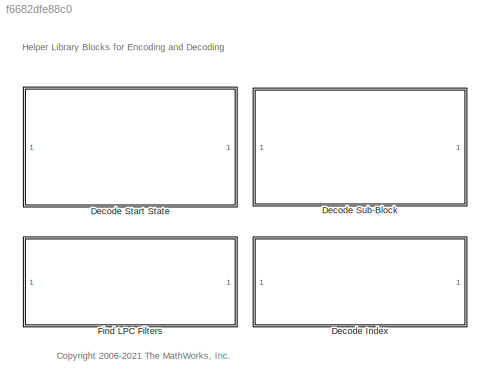
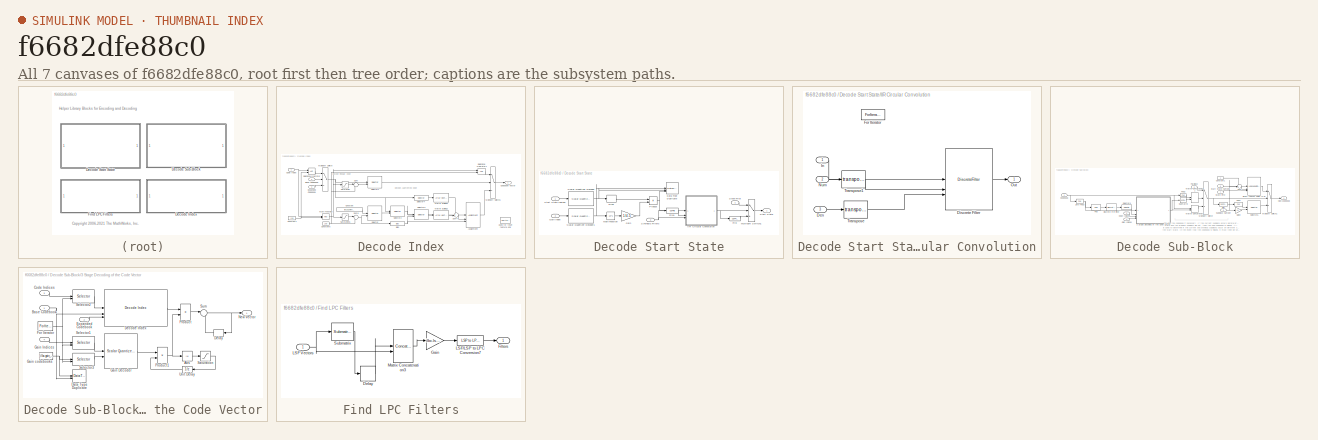
[diagram: thumbnail index - all 7 canvases of the model, root first then tree order]
MODEL slx_f6682dfe88c0
KIND library
CONFIG AbsTol = auto
CONFIG EnableMultiTasking = off
CONFIG FixedStep = auto
CONFIG MaxStep = auto
CONFIG MinStep = auto
CONFIG RelTol = 1e-3
CONFIG SampleTimeConstraint = Unconstrained
CONFIG SolverName = ode45
CONFIG StartTime = 0.0
CONFIG StopTime = 10.0
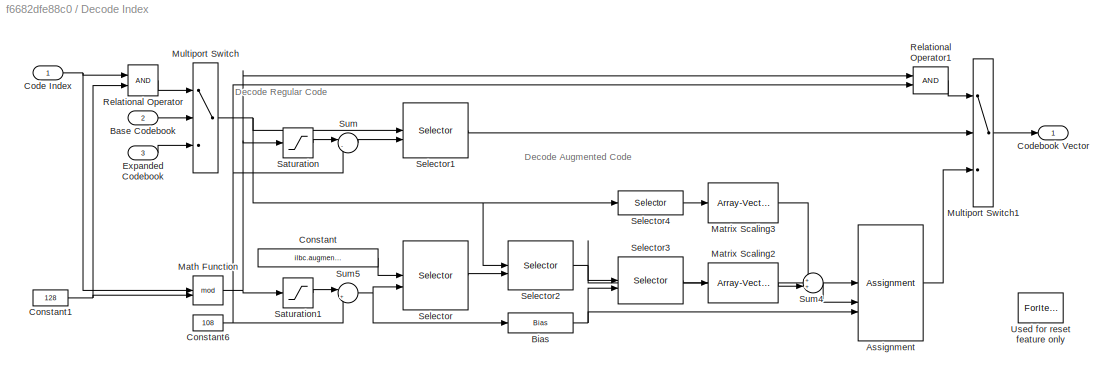
BLOCK [SubSystem] Decode Index
  RTWSystemCode = Reusable function
  TreatAsAtomicUnit = on
BLOCK [Assignment] Decode Index/Assignment
  IndexMode = Zero-based
  IndexOptions = Starting index (port),Assign all
  Indices = 1,1
  NumberOfDimensions = 2
  OutputSizes = 40,1
BLOCK [Inport] Decode Index/Base Codebook
  Port = 2
BLOCK [Bias] Decode Index/Bias
  Bias = 15
  SaturateOnIntegerOverflow = off
BLOCK [Inport] Decode Index/Code Index
BLOCK [Outport] Decode Index/Codebook Vector
BLOCK [Constant] Decode Index/Constant
  OutDataTypeStr = uint8
  Value = ilbc.augmented_idxTbl
  VectorParams1D = off
BLOCK [Constant] Decode Index/Constant1
  OutDataTypeStr = uint8
  Value = 128
BLOCK [Constant] Decode Index/Constant6
  OutDataTypeStr = uint8
  Value = 108
BLOCK [Inport] Decode Index/Expanded Codebook
  Port = 3
BLOCK [Math] Decode Index/Math Function
  Operator = mod
  SignedPower = on
BLOCK [Reference] Decode Index/Matrix Scaling2  REF=dspmtrx3/Array-Vector
Multiply
  SourceBlock = dspmtrx3/Array-Vector\nMultiply
  SourceType = Array-Vector Multiply
BLOCK [Reference] Decode Index/Matrix Scaling3  REF=dspmtrx3/Array-Vector
Multiply
  SourceBlock = dspmtrx3/Array-Vector\nMultiply
  SourceType = Array-Vector Multiply
BLOCK [MultiPortSwitch] Decode Index/Multiport Switch
  DataPortOrder = Zero-based contiguous
  InputSameDT = off
  Inputs = 2
  SaturateOnIntegerOverflow = off
  zeroidx = on
BLOCK [MultiPortSwitch] Decode Index/Multiport Switch1
  DataPortOrder = Zero-based contiguous
  InputSameDT = off
  Inputs = 2
  SaturateOnIntegerOverflow = off
  zeroidx = on
BLOCK [RelationalOperator] Decode Index/Relational Operator
  InputSameDT = off
  OutDataTypeStr = boolean
BLOCK [RelationalOperator] Decode Index/Relational Operator1
  InputSameDT = off
  OutDataTypeStr = boolean
BLOCK [Saturate] Decode Index/Saturation
  LowerLimit = 0
  UpperLimit = 107
BLOCK [Saturate] Decode Index/Saturation1
  LowerLimit = 108
  UpperLimit = 127
BLOCK [Selector] Decode Index/Selector
  IndexMode = Zero-based
  IndexOptions = Select all,Index vector (port)
  Indices = [1 3],1
  InputPortWidth = 3
  NumberOfDimensions = 2
  OutputSizes = 1,1
BLOCK [Selector] Decode Index/Selector1
  IndexOptions = Starting index (port),Select all
  Indices = 1,-1
  InputPortWidth = 3
  NumberOfDimensions = 2
  OutputSizes = 40,1
BLOCK [Selector] Decode Index/Selector2
  IndexOptions = Index vector (port),Select all
  Indices = [1 3],1
  InputPortWidth = 3
  NumberOfDimensions = 2
  OutputSizes = 1,1
BLOCK [Selector] Decode Index/Selector3
  IndexMode = Zero-based
  IndexOptions = Starting index (port),Select all
  Indices = [1 3],1
  InputPortWidth = 3
  NumberOfDimensions = 2
  OutputSizes = 5,5
BLOCK [Selector] Decode Index/Selector4
  IndexOptions = Index vector (dialog),Select all
  Indices = [143:147],1
  InputPortWidth = 3
  NumberOfDimensions = 2
  OutputSizes = 1,1
BLOCK [Sum] Decode Index/Sum
  Inputs = |-+
BLOCK [Sum] Decode Index/Sum4
  Inputs = ++|
BLOCK [Sum] Decode Index/Sum5
  Inputs = |+-
BLOCK [ForIterator] Decode Index/Used for reset feature only
  IterationLimit = 1
  IterationVariableDataType = int8
  ResetStates = reset
  ShowIterationPort = off
BLOCK [SubSystem] Decode Start State
  RTWSystemCode = Reusable function
  TreatAsAtomicUnit = on
BLOCK [DataTypeDuplicate] Decode Start State/Data Type Duplicate
  NumInputPorts = 3
BLOCK [DSPFlip] Decode Start State/Flip
BLOCK [DSPFlip] Decode Start State/Flip1
BLOCK [DSPFlip] Decode Start State/Flip3
BLOCK [Gain] Decode Start State/Gain
  Gain = 1/4.5
  OutDataTypeStr = Inherit: Inherit via back propagation
BLOCK [Inport] Decode Start State/Gain Index
  Port = 2
BLOCK [SubSystem] Decode Start State/IIR Circular Convolution
  TreatAsAtomicUnit = on
BLOCK [Inport] Decode Start State/IIR Circular Convolution/Den
  Port = 3
BLOCK [DiscreteFilter] Decode Start State/IIR Circular Convolution/Discrete Filter
  DenAccumDataTypeStr = Inherit: Same as product output
  DenProductDataTypeStr = Inherit: Same as input
  Denominator = [1 0.1]
  DenominatorSource = Input port
  FilterStructure = Direct form II transposed
  InputPortMap = u0,p1,p3
  InputProcessing = Columns as channels (frame based)
  NumAccumDataTypeStr = Inherit: Same as product output
  NumProductDataTypeStr = Inherit: Same as input
  Numerator = [0.5 0.5]
  NumeratorSource = Input port
  OutDataTypeStr = Inherit: Same as input
  a0EqualsOne = on
BLOCK [ForIterator] Decode Start State/IIR Circular Convolution/For Iterator
  IterationLimit = 2
  ResetStates = reset
  ShowIterationPort = off
BLOCK [Inport] Decode Start State/IIR Circular Convolution/In
BLOCK [Inport] Decode Start State/IIR Circular Convolution/Num
  Port = 2
BLOCK [Outport] Decode Start State/IIR Circular Convolution/Out
BLOCK [Math] Decode Start State/IIR Circular Convolution/Transpose
  Operator = transpose
  SignedPower = on
BLOCK [Math] Decode Start State/IIR Circular Convolution/Transpose1
  Operator = transpose
  SignedPower = on
BLOCK [Math] Decode Start State/Math Function
  Operator = 10^u
  SignedPower = on
BLOCK [MultiPortSwitch] Decode Start State/Multiport Switch1
  DataPortOrder = Zero-based contiguous
  InputSameDT = off
  Inputs = 2
  SaturateOnIntegerOverflow = off
  zeroidx = on
BLOCK [Product] Decode Start State/Product
  OutDataTypeStr = Inherit: Inherit via back propagation
  RndMeth = Zero
BLOCK [Reference] Decode Start State/Scalar Quantizer Decoder  REF=dspquant2/Scalar Quantizer
Decoder
  SourceBlock = dspquant2/Scalar Quantizer\nDecoder
  SourceType = Scalar Quantizer Decoder
BLOCK [Reference] Decode Start State/Scalar Quantizer Decoder1  REF=dspquant2/Scalar Quantizer
Decoder
  SourceBlock = dspquant2/Scalar Quantizer\nDecoder
  SourceType = Scalar Quantizer Decoder
BLOCK [Outport] Decode Start State/Start State
BLOCK [Inport] Decode Start State/Start State Indices
BLOCK [Inport] Decode Start State/State First
  Port = 4
BLOCK [Inport] Decode Start State/Synthesis Filters
  Port = 3
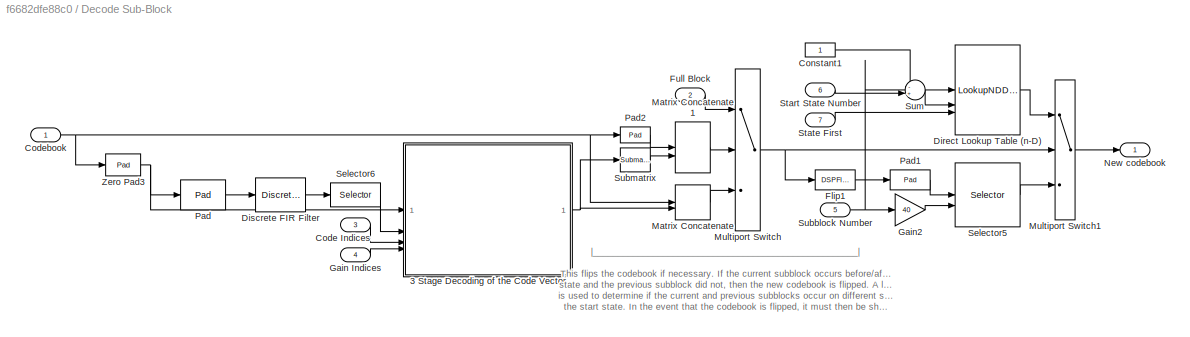
BLOCK [SubSystem] Decode Sub-Block
  RTWSystemCode = Reusable function
  TreatAsAtomicUnit = on
BLOCK [SubSystem] Decode Sub-Block/3 Stage Decoding of the Code Vector
  TreatAsAtomicUnit = on
BLOCK [Abs] Decode Sub-Block/3 Stage Decoding of the Code Vector/Abs
  SaturateOnIntegerOverflow = off
BLOCK [Inport] Decode Sub-Block/3 Stage Decoding of the Code Vector/Base Codebook
BLOCK [Inport] Decode Sub-Block/3 Stage Decoding of the Code Vector/Code Indices
  Port = 3
BLOCK [DataTypeDuplicate] Decode Sub-Block/3 Stage Decoding of the Code Vector/Data Type Duplicate
BLOCK [Reference] Decode Sub-Block/3 Stage Decoding of the Code Vector/Decode Index  REF=$bdroot/Decode Index
  SourceBlock = $bdroot/Decode Index
  SourceType = SubSystem
BLOCK [Delay] Decode Sub-Block/3 Stage Decoding of the Code Vector/Delay
  DelayLength = 1
  InitialCondition = 0
  InputPortMap = u0
  UserDataPersistent = on
BLOCK [Inport] Decode Sub-Block/3 Stage Decoding of the Code Vector/Expanded Codebook
  Port = 2
BLOCK [ForIterator] Decode Sub-Block/3 Stage Decoding of the Code Vector/For Iterator
  IndexMode = Zero-based
  IterationLimit = 3
  ResetStates = reset
BLOCK [Reference] Decode Sub-Block/3 Stage Decoding of the Code Vector/Gain Decoder  REF=dspquant2/Scalar Quantizer
Decoder
  SourceBlock = dspquant2/Scalar Quantizer\nDecoder
  SourceType = Scalar Quantizer Decoder
BLOCK [Inport] Decode Sub-Block/3 Stage Decoding of the Code Vector/Gain Indices
  Port = 4
BLOCK [Constant] Decode Sub-Block/3 Stage Decoding of the Code Vector/Gain codebooks
  OutDataTypeStr = Inherit: Inherit via back propagation
  Value = [ilbc.gain_sq5Tbl; ilbc.gain_sq4Tbl; ilbc.gain_sq3Tbl]
  VectorParams1D = off
BLOCK [Outport] Decode Sub-Block/3 Stage Decoding of the Code Vector/New Vector
BLOCK [Product] Decode Sub-Block/3 Stage Decoding of the Code Vector/Product
  RndMeth = Zero
BLOCK [Product] Decode Sub-Block/3 Stage Decoding of the Code Vector/Product1
  RndMeth = Zero
BLOCK [Saturate] Decode Sub-Block/3 Stage Decoding of the Code Vector/Saturation
  LowerLimit = 0.1
  UpperLimit = inf
BLOCK [Selector] Decode Sub-Block/3 Stage Decoding of the Code Vector/Selector1
  IndexMode = Zero-based
  IndexOptions = Index vector (port),Select all
  Indices = 1,1
  InputPortWidth = 3
  NumberOfDimensions = 2
  OutputSizes = 1,1
BLOCK [Selector] Decode Sub-Block/3 Stage Decoding of the Code Vector/Selector2
  IndexMode = Zero-based
  IndexOptions = Index vector (port),Select all
  Indices = 1,1
  InputPortWidth = 3
  NumberOfDimensions = 2
  OutputSizes = 1,1
BLOCK [Selector] Decode Sub-Block/3 Stage Decoding of the Code Vector/Selector3
  IndexMode = Zero-based
  IndexOptions = Index vector (port),Select all
  Indices = 1,1
  InputPortWidth = 3
  NumberOfDimensions = 2
  OutputSizes = 1,1
BLOCK [Sum] Decode Sub-Block/3 Stage Decoding of the Code Vector/Sum
  Inputs = |++
BLOCK [UnitDelay] Decode Sub-Block/3 Stage Decoding of the Code Vector/Unit Delay
  HasFrameUpgradeWarning = on
  InitialCondition = 1
  SampleTime = -1
BLOCK [Inport] Decode Sub-Block/Code Indices
  Port = 3
BLOCK [Inport] Decode Sub-Block/Codebook
BLOCK [Constant] Decode Sub-Block/Constant1
  OutDataTypeStr = uint8
BLOCK [LookupNDDirect] Decode Sub-Block/Direct Lookup Table (n-D)
  NumberOfTableDimensions = 3
  Table = ilbc.flip_subblockTbl{ilbcMode}
BLOCK [DiscreteFir] Decode Sub-Block/Discrete FIR Filter
  Coefficients = ilbc.cbfiltersTbl
  InputPortMap = u0
  InputProcessing = Columns as channels (frame based)
  OutputPortMap = o0
BLOCK [DSPFlip] Decode Sub-Block/Flip1
BLOCK [Inport] Decode Sub-Block/Full Block
  Port = 2
BLOCK [Inport] Decode Sub-Block/Gain Indices
  Port = 4
BLOCK [Gain] Decode Sub-Block/Gain2
  Gain = 40
  OutDataTypeStr = Inherit: Same as input
BLOCK [Concatenate] Decode Sub-Block/Matrix Concatenate
  Mode = Multidimensional array
BLOCK [Concatenate] Decode Sub-Block/Matrix Concatenate1
  Mode = Multidimensional array
BLOCK [MultiPortSwitch] Decode Sub-Block/Multiport Switch
  DataPortOrder = Zero-based contiguous
  InputSameDT = off
  Inputs = 2
  SaturateOnIntegerOverflow = off
  zeroidx = on
BLOCK [MultiPortSwitch] Decode Sub-Block/Multiport Switch1
  DataPortOrder = Zero-based contiguous
  InputSameDT = off
  Inputs = 2
  SaturateOnIntegerOverflow = off
  zeroidx = on
BLOCK [Outport] Decode Sub-Block/New codebook
BLOCK [Reference] Decode Sub-Block/Pad  REF=dspsigops/Pad
  SourceBlock = dspsigops/Pad
  SourceType = Pad
BLOCK [Reference] Decode Sub-Block/Pad1  REF=dspsigops/Pad
  SourceBlock = dspsigops/Pad
  SourceType = Pad
BLOCK [Reference] Decode Sub-Block/Pad2  REF=dspsigops/Pad
  SourceBlock = dspsigops/Pad
  SourceType = Pad
BLOCK [Selector] Decode Sub-Block/Selector5
  IndexMode = Zero-based
  IndexOptions = Starting index (port),Select all
  Indices = 1:240,1
  InputPortWidth = 3
  NumberOfDimensions = 2
  OutputSizes = ilbc.BLOCKL{ilbcMode},1
BLOCK [Selector] Decode Sub-Block/Selector6
  IndexOptions = Index vector (dialog),Select all
  Indices = 9:155,-1
  InputPortWidth = 3
  NumberOfDimensions = 2
  OutputSizes = 1
BLOCK [Inport] Decode Sub-Block/Start State Number
  Port = 6
BLOCK [Inport] Decode Sub-Block/State First
  Port = 7
BLOCK [Inport] Decode Sub-Block/Subblock Number
  Port = 5
BLOCK [Reference] Decode Sub-Block/Submatrix  REF=matrix_library/Submatrix
  SourceBlock = matrix_library/Submatrix
  SourceType = Submatrix
BLOCK [Sum] Decode Sub-Block/Sum
  Inputs = -+|
BLOCK [Reference] Decode Sub-Block/Zero Pad3  REF=dspsigops/Pad
  SourceBlock = dspsigops/Pad
  SourceType = Pad
BLOCK [SubSystem] Find LPC Filters
  RTWSystemCode = Reusable function
  TreatAsAtomicUnit = on
BLOCK [Delay] Find LPC Filters/Delay
  DelayLength = 1
  InitialCondition = ilbc.lsfmeanTbl
  InputPortMap = u0
BLOCK [Outport] Find LPC Filters/Filters
BLOCK [Gain] Find LPC Filters/Gain
  Gain = ilbc.lsf_weightTbl{ilbcMode}
  Multiplication = Matrix(u*K)
  OutDataTypeStr = Inherit: Same as input
  ParamDataTypeStr = Inherit: Same as input
BLOCK [Inport] Find LPC Filters/LSF Vectors
BLOCK [Reference] Find LPC Filters/LSF//LSP to LPC Conversion7  REF=dsplp/LSF//LSP to LPC
Conversion
  SourceBlock = dsplp/LSF//LSP to LPC\nConversion
  SourceType = LSF/LSP to LPC Conversion
BLOCK [Concatenate] Find LPC Filters/Matrix Concatenation3
  ConcatenateDimension = 2
  Mode = Multidimensional array
BLOCK [Reference] Find LPC Filters/Submatrix  REF=matrix_library/Submatrix
  SourceBlock = matrix_library/Submatrix
  SourceType = Submatrix
ANNOTATION (root): <copyright redacted>
ANNOTATION (root): Helper Library Blocks for Encoding and Decoding
ANNOTATION Decode Index: Decode Augmented Code
ANNOTATION Decode Index: Decode Regular Code
ANNOTATION Decode Sub-Block: |_____________________________________________________| This flips the codebook if necessary. If the current subblock occurs before/after the start state and the previous subblock did not, then the new codebook is flipped. A lookup table is used to determine if the current and previous subblocks occur on different sides of the start state. In the event that the codebook is flipped, it must then be...<+105ch>
LINE Decode Index/Assignment:1 -> Decode Index/Multiport Switch1:3
LINE Decode Index/Base Codebook:1 -> Decode Index/Multiport Switch:2
NET Decode Index/Bias:1 -> Decode Index/Assignment:3, Decode Index/Selector3:2
NET Decode Index/Code Index:1 -> Decode Index/Math Function:1, Decode Index/Relational Operator:1
NET Decode Index/Constant1:1 -> Decode Index/Math Function:2, Decode Index/Relational Operator:2
NET Decode Index/Constant6:1 -> Decode Index/Relational Operator1:2, Decode Index/Sum5:2, Decode Index/Sum:2
LINE Decode Index/Constant:1 -> Decode Index/Selector:1
LINE Decode Index/Expanded Codebook:1 -> Decode Index/Multiport Switch:3
NET Decode Index/Math Function:1 -> Decode Index/Relational Operator1:1, Decode Index/Saturation1:1, Decode Index/Saturation:1
LINE Decode Index/Matrix Scaling2:1 -> Decode Index/Sum4:2
LINE Decode Index/Matrix Scaling3:1 -> Decode Index/Sum4:1
LINE Decode Index/Multiport Switch1:1 -> Decode Index/Codebook Vector:1
NET Decode Index/Multiport Switch:1 -> Decode Index/Selector1:1, Decode Index/Selector2:1, Decode Index/Selector4:1
LINE Decode Index/Relational Operator1:1 -> Decode Index/Multiport Switch1:1
LINE Decode Index/Relational Operator:1 -> Decode Index/Multiport Switch:1
LINE Decode Index/Saturation1:1 -> Decode Index/Sum5:1
LINE Decode Index/Saturation:1 -> Decode Index/Sum:1
LINE Decode Index/Selector1:1 -> Decode Index/Multiport Switch1:2
NET Decode Index/Selector2:1 -> Decode Index/Assignment:1, Decode Index/Selector3:1
LINE Decode Index/Selector3:1 -> Decode Index/Matrix Scaling2:1
LINE Decode Index/Selector4:1 -> Decode Index/Matrix Scaling3:1
LINE Decode Index/Selector:1 -> Decode Index/Selector2:2
LINE Decode Index/Sum4:1 -> Decode Index/Assignment:2
NET Decode Index/Sum5:1 -> Decode Index/Bias:1, Decode Index/Selector:2
LINE Decode Index/Sum:1 -> Decode Index/Selector1:2
LINE Decode Start State/Flip1:1 -> Decode Start State/IIR Circular Convolution:2
LINE Decode Start State/Flip3:1 -> Decode Start State/Product:1
LINE Decode Start State/Flip:1 -> Decode Start State/Multiport Switch1:3
LINE Decode Start State/Gain Index:1 -> Decode Start State/Scalar Quantizer Decoder1:1
LINE Decode Start State/Gain:1 -> Decode Start State/Product:2
LINE Decode Start State/IIR Circular Convolution/Den:1 -> Decode Start State/IIR Circular Convolution/Transpose:1
LINE Decode Start State/IIR Circular Convolution/Discrete Filter:1 -> Decode Start State/IIR Circular Convolution/Out:1
LINE Decode Start State/IIR Circular Convolution/In:1 -> Decode Start State/IIR Circular Convolution/Discrete Filter:1
LINE Decode Start State/IIR Circular Convolution/Num:1 -> Decode Start State/IIR Circular Convolution/Transpose1:1
LINE Decode Start State/IIR Circular Convolution/Transpose1:1 -> Decode Start State/IIR Circular Convolution/Discrete Filter:2
LINE Decode Start State/IIR Circular Convolution/Transpose:1 -> Decode Start State/IIR Circular Convolution/Discrete Filter:3
NET Decode Start State/IIR Circular Convolution:1 -> Decode Start State/Flip:1, Decode Start State/Multiport Switch1:2
LINE Decode Start State/Math Function:1 -> Decode Start State/Gain:1
LINE Decode Start State/Multiport Switch1:1 -> Decode Start State/Start State:1
NET Decode Start State/Product:1 -> Decode Start State/Data Type Duplicate:3, Decode Start State/IIR Circular Convolution:1
NET Decode Start State/Scalar Quantizer Decoder1:1 -> Decode Start State/Data Type Duplicate:1, Decode Start State/Math Function:1
NET Decode Start State/Scalar Quantizer Decoder:1 -> Decode Start State/Data Type Duplicate:2, Decode Start State/Flip3:1
LINE Decode Start State/Start State Indices:1 -> Decode Start State/Scalar Quantizer Decoder:1
LINE Decode Start State/State First:1 -> Decode Start State/Multiport Switch1:1
NET Decode Start State/Synthesis Filters:1 -> Decode Start State/Flip1:1, Decode Start State/IIR Circular Convolution:3
LINE Decode Sub-Block/3 Stage Decoding of the Code Vector/Abs:1 -> Decode Sub-Block/3 Stage Decoding of the Code Vector/Saturation:1
NET Decode Sub-Block/3 Stage Decoding of the Code Vector/Base Codebook:1 -> Decode Sub-Block/3 Stage Decoding of the Code Vector/Data Type Duplicate:2, Decode Sub-Block/3 Stage Decoding of the Code Vector/Decode Index:2
LINE Decode Sub-Block/3 Stage Decoding of the Code Vector/Code Indices:1 -> Decode Sub-Block/3 Stage Decoding of the Code Vector/Selector2:1
LINE Decode Sub-Block/3 Stage Decoding of the Code Vector/Decode Index:1 -> Decode Sub-Block/3 Stage Decoding of the Code Vector/Product:1
LINE Decode Sub-Block/3 Stage Decoding of the Code Vector/Delay:1 -> Decode Sub-Block/3 Stage Decoding of the Code Vector/Sum:2
LINE Decode Sub-Block/3 Stage Decoding of the Code Vector/Expanded Codebook:1 -> Decode Sub-Block/3 Stage Decoding of the Code Vector/Decode Index:3
NET Decode Sub-Block/3 Stage Decoding of the Code Vector/For Iterator:1 -> Decode Sub-Block/3 Stage Decoding of the Code Vector/Selector1:2, Decode Sub-Block/3 Stage Decoding of the Code Vector/Selector2:2, Decode Sub-Block/3 Stage Decoding of the Code Vector/Selector3:2
LINE Decode Sub-Block/3 Stage Decoding of the Code Vector/Gain Decoder:1 -> Decode Sub-Block/3 Stage Decoding of the Code Vector/Product1:1
LINE Decode Sub-Block/3 Stage Decoding of the Code Vector/Gain Indices:1 -> Decode Sub-Block/3 Stage Decoding of the Code Vector/Selector1:1
NET Decode Sub-Block/3 Stage Decoding of the Code Vector/Gain codebooks:1 -> Decode Sub-Block/3 Stage Decoding of the Code Vector/Data Type Duplicate:1, Decode Sub-Block/3 Stage Decoding of the Code Vector/Selector3:1
NET Decode Sub-Block/3 Stage Decoding of the Code Vector/Product1:1 -> Decode Sub-Block/3 Stage Decoding of the Code Vector/Abs:1, Decode Sub-Block/3 Stage Decoding of the Code Vector/Product:2
LINE Decode Sub-Block/3 Stage Decoding of the Code Vector/Product:1 -> Decode Sub-Block/3 Stage Decoding of the Code Vector/Sum:1
LINE Decode Sub-Block/3 Stage Decoding of the Code Vector/Saturation:1 -> Decode Sub-Block/3 Stage Decoding of the Code Vector/Unit Delay:1
LINE Decode Sub-Block/3 Stage Decoding of the Code Vector/Selector1:1 -> Decode Sub-Block/3 Stage Decoding of the Code Vector/Gain Decoder:1
LINE Decode Sub-Block/3 Stage Decoding of the Code Vector/Selector2:1 -> Decode Sub-Block/3 Stage Decoding of the Code Vector/Decode Index:1
LINE Decode Sub-Block/3 Stage Decoding of the Code Vector/Selector3:1 -> Decode Sub-Block/3 Stage Decoding of the Code Vector/Gain Decoder:2
NET Decode Sub-Block/3 Stage Decoding of the Code Vector/Sum:1 -> Decode Sub-Block/3 Stage Decoding of the Code Vector/Delay:1, Decode Sub-Block/3 Stage Decoding of the Code Vector/New Vector:1
LINE Decode Sub-Block/3 Stage Decoding of the Code Vector/Unit Delay:1 -> Decode Sub-Block/3 Stage Decoding of the Code Vector/Product1:2
NET Decode Sub-Block/3 Stage Decoding of the Code Vector:1 -> Decode Sub-Block/Matrix Concatenate:2, Decode Sub-Block/Submatrix:1
LINE Decode Sub-Block/Code Indices:1 -> Decode Sub-Block/3 Stage Decoding of the Code Vector:3
NET Decode Sub-Block/Codebook:1 -> Decode Sub-Block/Matrix Concatenate:1, Decode Sub-Block/Pad2:1, Decode Sub-Block/Zero Pad3:1
LINE Decode Sub-Block/Constant1:1 -> Decode Sub-Block/Sum:1
LINE Decode Sub-Block/Direct Lookup Table (n-D):1 -> Decode Sub-Block/Multiport Switch1:1
LINE Decode Sub-Block/Discrete FIR Filter:1 -> Decode Sub-Block/Selector6:1
LINE Decode Sub-Block/Flip1:1 -> Decode Sub-Block/Pad1:1
LINE Decode Sub-Block/Full Block:1 -> Decode Sub-Block/Multiport Switch:1
LINE Decode Sub-Block/Gain Indices:1 -> Decode Sub-Block/3 Stage Decoding of the Code Vector:4
LINE Decode Sub-Block/Gain2:1 -> Decode Sub-Block/Selector5:2
LINE Decode Sub-Block/Matrix Concatenate1:1 -> Decode Sub-Block/Multiport Switch:2
LINE Decode Sub-Block/Matrix Concatenate:1 -> Decode Sub-Block/Multiport Switch:3
LINE Decode Sub-Block/Multiport Switch1:1 -> Decode Sub-Block/New codebook:1
NET Decode Sub-Block/Multiport Switch:1 -> Decode Sub-Block/Flip1:1, Decode Sub-Block/Multiport Switch1:2
LINE Decode Sub-Block/Pad1:1 -> Decode Sub-Block/Selector5:1
LINE Decode Sub-Block/Pad2:1 -> Decode Sub-Block/Matrix Concatenate1:1
LINE Decode Sub-Block/Pad:1 -> Decode Sub-Block/Discrete FIR Filter:1
LINE Decode Sub-Block/Selector5:1 -> Decode Sub-Block/Multiport Switch1:3
LINE Decode Sub-Block/Selector6:1 -> Decode Sub-Block/3 Stage Decoding of the Code Vector:2
LINE Decode Sub-Block/Start State Number:1 -> Decode Sub-Block/Sum:2
LINE Decode Sub-Block/State First:1 -> Decode Sub-Block/Direct Lookup Table (n-D):3
NET Decode Sub-Block/Subblock Number:1 -> Decode Sub-Block/Direct Lookup Table (n-D):1, Decode Sub-Block/Gain2:1
LINE Decode Sub-Block/Submatrix:1 -> Decode Sub-Block/Matrix Concatenate1:2
LINE Decode Sub-Block/Sum:1 -> Decode Sub-Block/Direct Lookup Table (n-D):2
NET Decode Sub-Block/Zero Pad3:1 -> Decode Sub-Block/3 Stage Decoding of the Code Vector:1, Decode Sub-Block/Pad:1
LINE Find LPC Filters/Delay:1 -> Find LPC Filters/Matrix Concatenation3:1
LINE Find LPC Filters/Gain:1 -> Find LPC Filters/LSF//LSP to LPC Conversion7:1
NET Find LPC Filters/LSF Vectors:1 -> Find LPC Filters/Matrix Concatenation3:2, Find LPC Filters/Submatrix:1
LINE Find LPC Filters/LSF//LSP to LPC Conversion7:1 -> Find LPC Filters/Filters:1
LINE Find LPC Filters/Matrix Concatenation3:1 -> Find LPC Filters/Gain:1
LINE Find LPC Filters/Submatrix:1 -> Find LPC Filters/Delay:1
note: NET lines group one-source signal fan-out (src -> all destinations, sorted); 1:1 wires keep LINE
